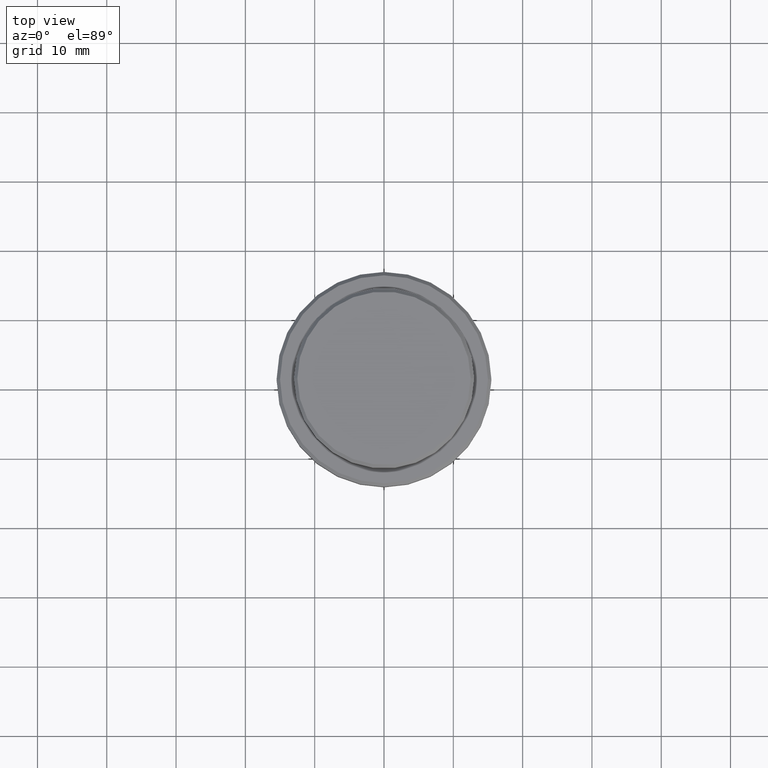
[diagram: clean part render]
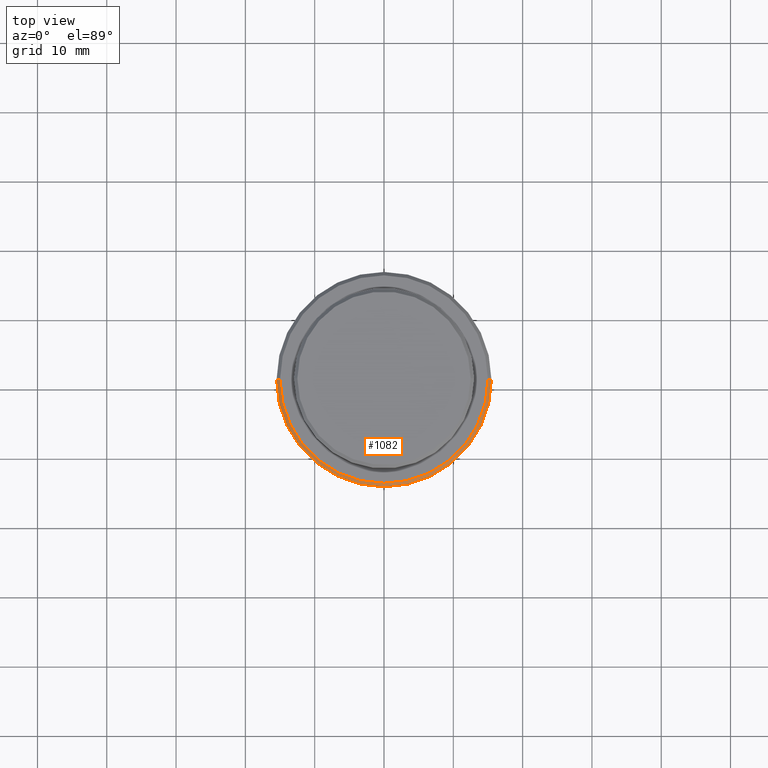
[diagram: same view with one face highlighted and labeled with its STEP entity id]
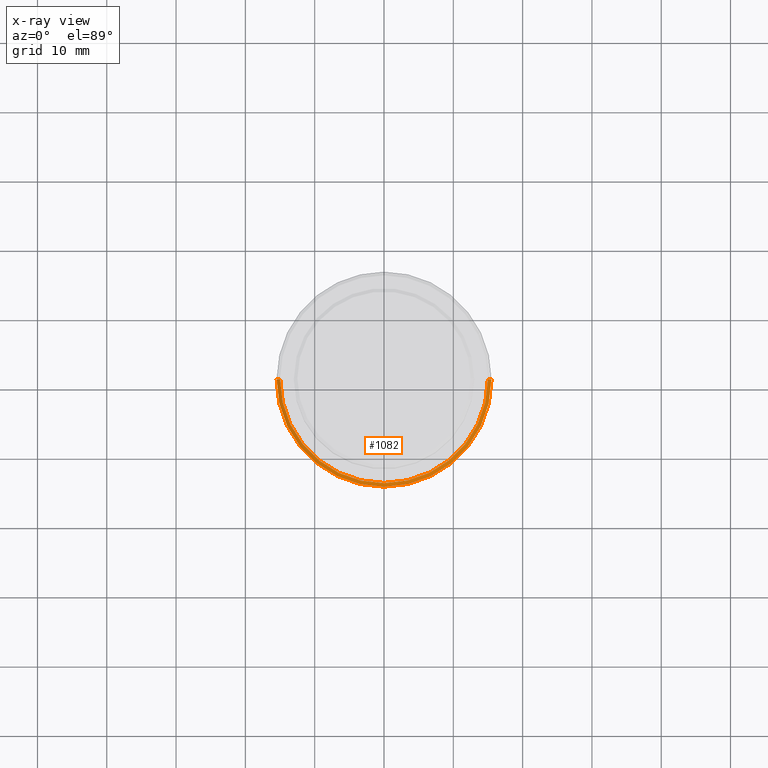
[diagram: x-ray of the same camera — body ghosted, the highlighted face saturated]
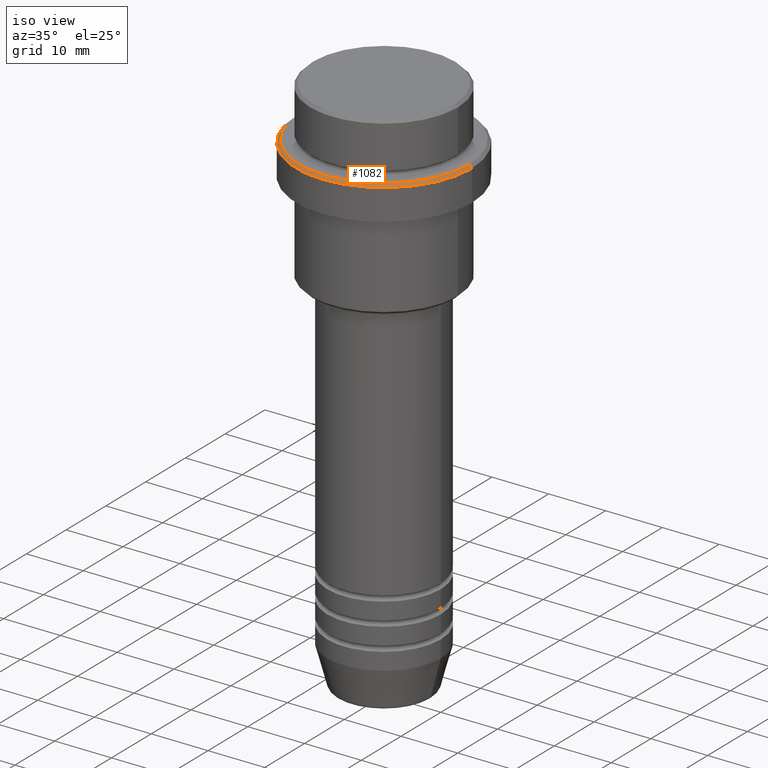
[diagram: same view with one face highlighted and labeled with its STEP entity id]
A machine part, top view. The second image highlights one B-rep face of the part: STEP entity #1082.
The next image is the same camera in x-ray: the body ghosted, the highlighted face saturated — about 0% of this face is hidden behind the body in this view.
A second angle (iso view) of the same face is appended — the face is thin or edge-on in the first view.
In plain terms, the highlighted conical surface has half-angle 45 deg.
Its self-contained STEP definition (entity closure, byte-faithful):
#59 = CARTESIAN_POINT ( 'NONE',  ( 15.00000000000001421, 1.867586368699714559E-15, -9.000000000000000000 ) ) ;
#82 = DIRECTION ( 'NONE',  ( 1.000000000000000000, 0.000000000000000000, 0.000000000000000000 ) ) ;
#98 = VERTEX_POINT ( 'NONE', #1233 ) ;
#142 = DIRECTION ( 'NONE',  ( 0.000000000000000000, 0.000000000000000000, -1.000000000000000000 ) ) ;
#172 = VERTEX_POINT ( 'NONE', #59 ) ;
#225 = AXIS2_PLACEMENT_3D ( 'NONE', #1396, #304, #82 ) ;
#304 = DIRECTION ( 'NONE',  ( 0.000000000000000000, 0.000000000000000000, -1.000000000000000000 ) ) ;
#308 = VECTOR ( 'NONE', #393, 1000.000000000000000 ) ;
#393 = DIRECTION ( 'NONE',  ( -0.7071067811865389130, 0.000000000000000000, -0.7071067811865561215 ) ) ;
#399 = ORIENTED_EDGE ( 'NONE', *, *, #932, .T. ) ;
#434 = VECTOR ( 'NONE', #703, 1000.000000000000000 ) ;
#446 = DIRECTION ( 'NONE',  ( -0.000000000000000000, -0.000000000000000000, 1.000000000000000000 ) ) ;
#479 = ORIENTED_EDGE ( 'NONE', *, *, #913, .F. ) ;
#492 = CARTESIAN_POINT ( 'NONE',  ( 0.000000000000000000, 0.000000000000000000, -9.000000000000000000 ) ) ;
#549 = CONICAL_SURFACE ( 'NONE', #789, 15.00000000000001421, 0.7853981633974361776 ) ;
#629 = CARTESIAN_POINT ( 'NONE',  ( 0.000000000000000000, 0.000000000000000000, -9.000000000000000000 ) ) ;
#703 = DIRECTION ( 'NONE',  ( 0.7071067811865389130, 8.659560562354828088E-17, -0.7071067811865561215 ) ) ;
#731 = EDGE_CURVE ( 'NONE', #98, #796, #841, .T. ) ;
#789 = AXIS2_PLACEMENT_3D ( 'NONE', #492, #142, #823 ) ;
#796 = VERTEX_POINT ( 'NONE', #1369 ) ;
#823 = DIRECTION ( 'NONE',  ( -1.000000000000000000, 0.000000000000000000, 0.000000000000000000 ) ) ;
#841 = CIRCLE ( 'NONE', #225, 15.50000000000000000 ) ;
#851 = EDGE_LOOP ( 'NONE', ( #479, #1349, #399, #969 ) ) ;
#857 = DIRECTION ( 'NONE',  ( 1.000000000000000000, 0.000000000000000000, 0.000000000000000000 ) ) ;
#913 = EDGE_CURVE ( 'NONE', #172, #98, #1061, .T. ) ;
#932 = EDGE_CURVE ( 'NONE', #1029, #796, #1155, .T. ) ;
#939 = CARTESIAN_POINT ( 'NONE',  ( 15.00000000000001421, 1.836970198721031561E-15, -9.000000000000000000 ) ) ;
#969 = ORIENTED_EDGE ( 'NONE', *, *, #731, .F. ) ;
#1029 = VERTEX_POINT ( 'NONE', #1218 ) ;
#1033 = FACE_OUTER_BOUND ( 'NONE', #851, .T. ) ;
#1061 = LINE ( 'NONE', #939, #434 ) ;
#1082 = ADVANCED_FACE ( 'NONE', ( #1033 ), #549, .T. ) ;
#1155 = LINE ( 'NONE', #1374, #308 ) ;
#1159 = CIRCLE ( 'NONE', #1246, 15.00000000000001421 ) ;
#1218 = CARTESIAN_POINT ( 'NONE',  ( -15.00000000000001421, 0.000000000000000000, -9.000000000000000000 ) ) ;
#1233 = CARTESIAN_POINT ( 'NONE',  ( 15.50000000000000000, 0.000000000000000000, -9.499999999999998224 ) ) ;
#1246 = AXIS2_PLACEMENT_3D ( 'NONE', #629, #446, #857 ) ;
#1349 = ORIENTED_EDGE ( 'NONE', *, *, #1378, .F. ) ;
#1369 = CARTESIAN_POINT ( 'NONE',  ( -15.50000000000000000, 1.898202538678397557E-15, -9.499999999999998224 ) ) ;
#1374 = CARTESIAN_POINT ( 'NONE',  ( -15.00000000000001421, 0.000000000000000000, -9.000000000000000000 ) ) ;
#1378 = EDGE_CURVE ( 'NONE', #1029, #172, #1159, .T. ) ;
#1396 = CARTESIAN_POINT ( 'NONE',  ( 0.000000000000000000, 0.000000000000000000, -9.499999999999998224 ) ) ;